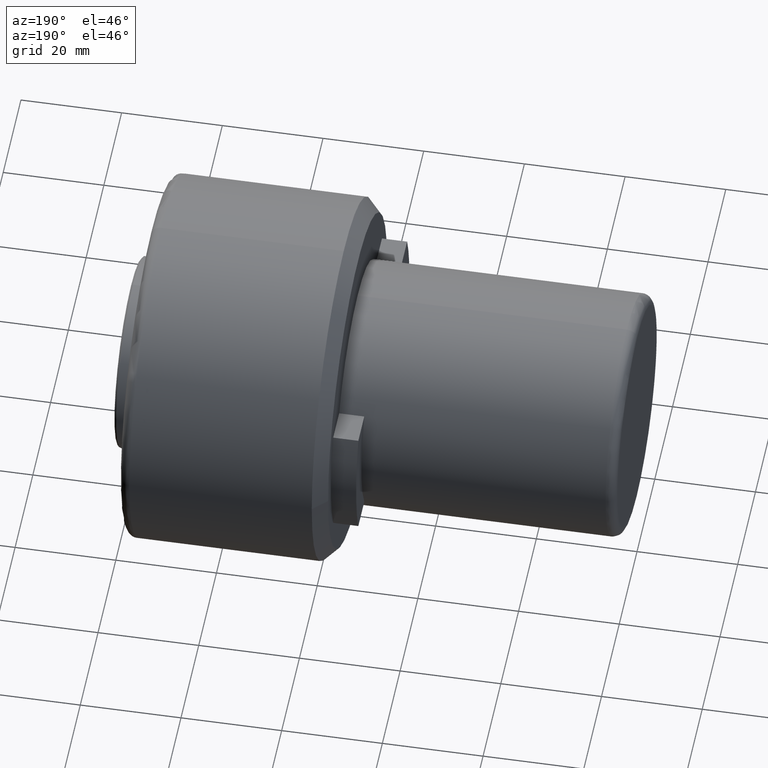
[diagram: clean part render]
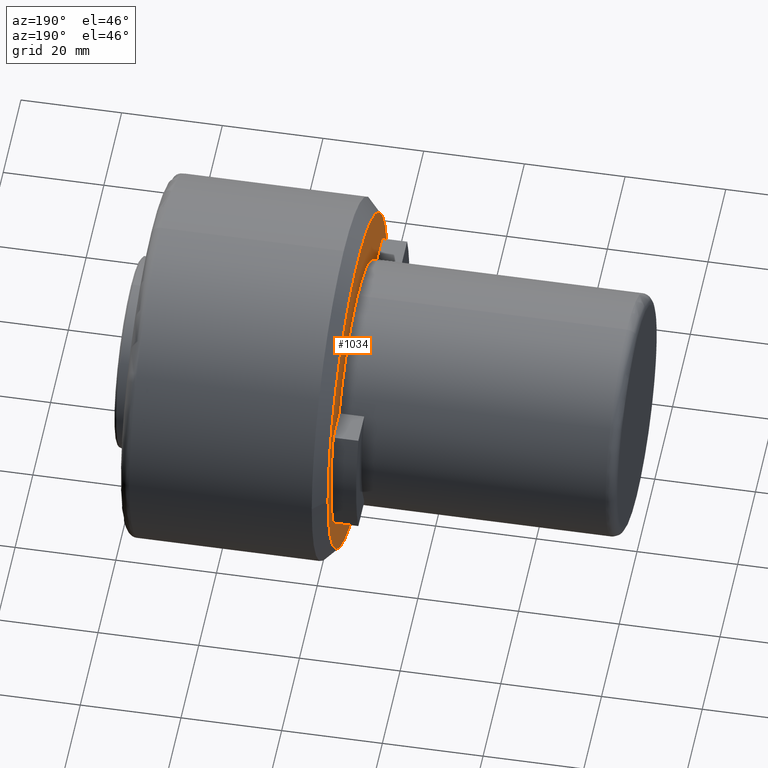
[diagram: same view with one face highlighted and labeled with its STEP entity id]
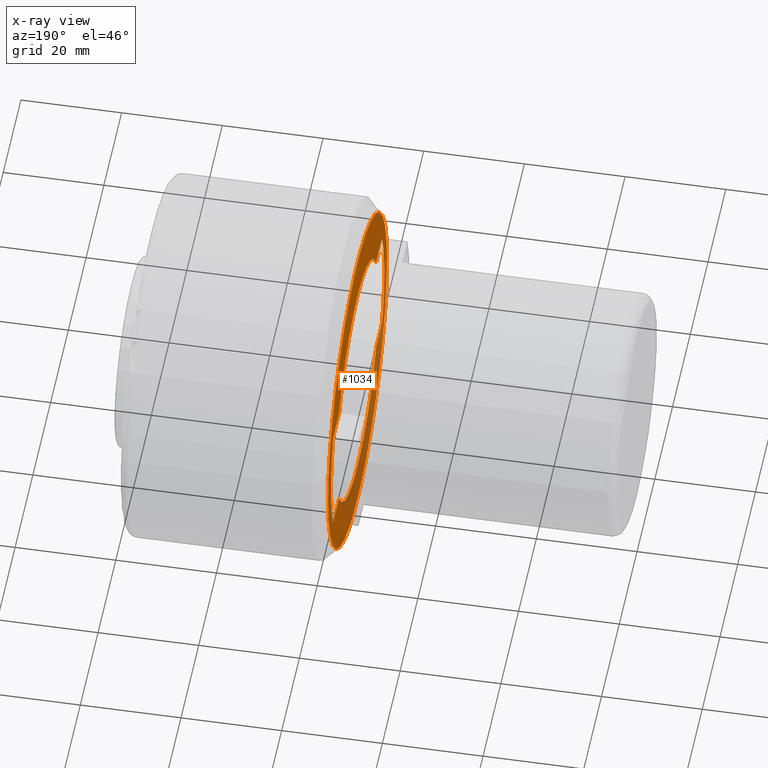
[diagram: x-ray of the same camera — body ghosted, the highlighted face saturated]
A machine part, auxiliary view. The second image highlights one B-rep face of the part: STEP entity #1034.
The next image is the same camera in x-ray: the body ghosted, the highlighted face saturated — about 37% of this face is hidden behind the body in this view.
In plain terms, the highlighted planar face has unit normal (1, 0, 0).
Its self-contained STEP definition (entity closure, byte-faithful):
#4 = AXIS2_PLACEMENT_3D ( 'NONE', #824, #956, #286 ) ;
#7 = EDGE_CURVE ( 'NONE', #547, #431, #415, .T. ) ;
#21 = VERTEX_POINT ( 'NONE', #1288 ) ;
#33 = CARTESIAN_POINT ( 'NONE',  ( 55.50000000000000000, -3.677383230559753800E-031, 0.0000000000000000000 ) ) ;
#54 = ORIENTED_EDGE ( 'NONE', *, *, #930, .F. ) ;
#62 = EDGE_CURVE ( 'NONE', #1160, #608, #928, .T. ) ;
#74 = CARTESIAN_POINT ( 'NONE',  ( 55.50000000000000700, -27.49545416980128100, 11.99999999999999800 ) ) ;
#93 = DIRECTION ( 'NONE',  ( -1.000000000000000000, -1.156482317317871700E-016, -0.0000000000000000000 ) ) ;
#118 = EDGE_CURVE ( 'NONE', #321, #1160, #661, .T. ) ;
#128 = CARTESIAN_POINT ( 'NONE',  ( 55.49999999999999300, -20.78460969007334200, 12.00000000130456000 ) ) ;
#131 = EDGE_CURVE ( 'NONE', #21, #522, #315, .T. ) ;
#154 = CARTESIAN_POINT ( 'NONE',  ( 55.50000000000000000, -33.64900000000000100, 11.99999999999999600 ) ) ;
#159 = VERTEX_POINT ( 'NONE', #839 ) ;
#164 = DIRECTION ( 'NONE',  ( 0.0000000000000000000, 1.000000000000000000, 0.0000000000000000000 ) ) ;
#234 = AXIS2_PLACEMENT_3D ( 'NONE', #736, #93, #844 ) ;
#243 = AXIS2_PLACEMENT_3D ( 'NONE', #664, #1294, #591 ) ;
#262 = CIRCLE ( 'NONE', #670, 33.24999999999999300 ) ;
#267 = DIRECTION ( 'NONE',  ( -1.000000000000000000, -1.156482317317871700E-016, -0.0000000000000000000 ) ) ;
#282 = VERTEX_POINT ( 'NONE', #615 ) ;
#286 = DIRECTION ( 'NONE',  ( 2.312964634635743000E-016, -1.000000000000000000, 0.0000000000000000000 ) ) ;
#290 = VERTEX_POINT ( 'NONE', #611 ) ;
#315 = CIRCLE ( 'NONE', #4, 30.00000000000000000 ) ;
#321 = VERTEX_POINT ( 'NONE', #630 ) ;
#326 = EDGE_CURVE ( 'NONE', #608, #21, #790, .T. ) ;
#334 = ORIENTED_EDGE ( 'NONE', *, *, #326, .F. ) ;
#335 = CARTESIAN_POINT ( 'NONE',  ( 55.50000000000000000, -33.64900000000000100, -33.64900000000000100 ) ) ;
#344 = VECTOR ( 'NONE', #1233, 1000.000000000000000 ) ;
#346 = LINE ( 'NONE', #598, #564 ) ;
#370 = AXIS2_PLACEMENT_3D ( 'NONE', #1218, #935, #1079 ) ;
#378 = CARTESIAN_POINT ( 'NONE',  ( 55.49999999999999300, -33.24999999999999300, 4.240339542047711600E-015 ) ) ;
#384 = EDGE_CURVE ( 'NONE', #431, #547, #262, .T. ) ;
#396 = EDGE_CURVE ( 'NONE', #1169, #873, #1287, .T. ) ;
#415 = CIRCLE ( 'NONE', #370, 33.24999999999999300 ) ;
#431 = VERTEX_POINT ( 'NONE', #937 ) ;
#464 = DIRECTION ( 'NONE',  ( -1.000000000000000000, 0.0000000000000000000, -1.445602896647339200E-016 ) ) ;
#468 = DIRECTION ( 'NONE',  ( -1.000000000000000000, 0.0000000000000000000, -1.445602896647339200E-016 ) ) ;
#475 = ORIENTED_EDGE ( 'NONE', *, *, #1274, .F. ) ;
#482 = AXIS2_PLACEMENT_3D ( 'NONE', #33, #267, #673 ) ;
#485 = ORIENTED_EDGE ( 'NONE', *, *, #396, .F. ) ;
#515 = EDGE_CURVE ( 'NONE', #282, #826, #346, .T. ) ;
#518 = VECTOR ( 'NONE', #1331, 1000.000000000000000 ) ;
#522 = VERTEX_POINT ( 'NONE', #74 ) ;
#545 = ORIENTED_EDGE ( 'NONE', *, *, #628, .F. ) ;
#547 = VERTEX_POINT ( 'NONE', #378 ) ;
#551 = ORIENTED_EDGE ( 'NONE', *, *, #515, .F. ) ;
#553 = PLANE ( 'NONE',  #923 ) ;
#564 = VECTOR ( 'NONE', #1246, 1000.000000000000000 ) ;
#566 = EDGE_LOOP ( 'NONE', ( #666, #741, #878, #622, #54, #551, #545, #485, #475, #755, #334 ) ) ;
#582 = CARTESIAN_POINT ( 'NONE',  ( 55.49999999999999300, 0.0000000000000000000, -7.523163844717393100E-031 ) ) ;
#583 = EDGE_CURVE ( 'NONE', #159, #290, #737, .T. ) ;
#591 = DIRECTION ( 'NONE',  ( 0.0000000000000000000, 0.0000000000000000000, 1.000000000000000000 ) ) ;
#598 = CARTESIAN_POINT ( 'NONE',  ( 55.50000000000000000, -33.64900000000000100, 11.99999999567059900 ) ) ;
#608 = VERTEX_POINT ( 'NONE', #781 ) ;
#611 = CARTESIAN_POINT ( 'NONE',  ( 55.50000000000000000, 20.78460969240347500, -11.99999999726865100 ) ) ;
#615 = CARTESIAN_POINT ( 'NONE',  ( 55.50000000000000700, 20.78460969332610700, 11.99999999567060100 ) ) ;
#622 = ORIENTED_EDGE ( 'NONE', *, *, #583, .F. ) ;
#627 = AXIS2_PLACEMENT_3D ( 'NONE', #582, #468, #1305 ) ;
#628 = EDGE_CURVE ( 'NONE', #873, #282, #768, .T. ) ;
#630 = CARTESIAN_POINT ( 'NONE',  ( 55.50000000000000700, 2.939152317953647900E-015, -24.00000000000000000 ) ) ;
#648 = FACE_BOUND ( 'NONE', #566, .T. ) ;
#652 = DIRECTION ( 'NONE',  ( -1.000000000000000000, 0.0000000000000000000, -1.445602896647339200E-016 ) ) ;
#656 = DIRECTION ( 'NONE',  ( 1.000000000000000000, 0.0000000000000000000, 0.0000000000000000000 ) ) ;
#661 = CIRCLE ( 'NONE', #243, 24.00000000000000000 ) ;
#664 = CARTESIAN_POINT ( 'NONE',  ( 55.50000000000000700, 0.0000000000000000000, 5.015442563508426400E-031 ) ) ;
#666 = ORIENTED_EDGE ( 'NONE', *, *, #62, .F. ) ;
#670 = AXIS2_PLACEMENT_3D ( 'NONE', #1296, #1037, #164 ) ;
#673 = DIRECTION ( 'NONE',  ( 2.312964634635743000E-016, -1.000000000000000000, 0.0000000000000000000 ) ) ;
#736 = CARTESIAN_POINT ( 'NONE',  ( 55.50000000000000000, 3.677383230559753400E-031, 0.0000000000000000000 ) ) ;
#737 = LINE ( 'NONE', #1145, #1267 ) ;
#741 = ORIENTED_EDGE ( 'NONE', *, *, #118, .F. ) ;
#755 = ORIENTED_EDGE ( 'NONE', *, *, #131, .F. ) ;
#768 = CIRCLE ( 'NONE', #627, 24.00000000000000000 ) ;
#781 = CARTESIAN_POINT ( 'NONE',  ( 55.50000000000000700, -27.49545417167629000, -11.99999999570380800 ) ) ;
#786 = LINE ( 'NONE', #154, #518 ) ;
#790 = CIRCLE ( 'NONE', #482, 30.00000000000000000 ) ;
#796 = CARTESIAN_POINT ( 'NONE',  ( 55.49999999999999300, 0.0000000000000000000, -7.523163844717393100E-031 ) ) ;
#805 = AXIS2_PLACEMENT_3D ( 'NONE', #796, #464, #1217 ) ;
#823 = EDGE_LOOP ( 'NONE', ( #903, #990 ) ) ;
#824 = CARTESIAN_POINT ( 'NONE',  ( 55.50000000000000000, -3.677383230559753800E-031, 0.0000000000000000000 ) ) ;
#826 = VERTEX_POINT ( 'NONE', #1368 ) ;
#839 = CARTESIAN_POINT ( 'NONE',  ( 55.49999999999999300, 27.49545417165220900, -11.99999999787949900 ) ) ;
#843 = DIRECTION ( 'NONE',  ( 0.0000000000000000000, -1.000000000000000000, -0.0000000000000000000 ) ) ;
#844 = DIRECTION ( 'NONE',  ( 2.312964634635743000E-016, -1.000000000000000000, 0.0000000000000000000 ) ) ;
#873 = VERTEX_POINT ( 'NONE', #1258 ) ;
#874 = CARTESIAN_POINT ( 'NONE',  ( 55.50000000000000700, -20.78460969578734200, -11.99999999140761600 ) ) ;
#878 = ORIENTED_EDGE ( 'NONE', *, *, #991, .F. ) ;
#881 = FACE_OUTER_BOUND ( 'NONE', #823, .T. ) ;
#903 = ORIENTED_EDGE ( 'NONE', *, *, #384, .F. ) ;
#923 = AXIS2_PLACEMENT_3D ( 'NONE', #335, #656, #1398 ) ;
#928 = LINE ( 'NONE', #963, #344 ) ;
#930 = EDGE_CURVE ( 'NONE', #826, #159, #1050, .T. ) ;
#935 = DIRECTION ( 'NONE',  ( 1.000000000000000000, 9.637352644315590300E-017, -0.0000000000000000000 ) ) ;
#937 = CARTESIAN_POINT ( 'NONE',  ( 55.49999999999999300, 33.24999999999999300, 0.0000000000000000000 ) ) ;
#940 = CIRCLE ( 'NONE', #1273, 24.00000000000000000 ) ;
#956 = DIRECTION ( 'NONE',  ( -1.000000000000000000, -1.156482317317871700E-016, -0.0000000000000000000 ) ) ;
#963 = CARTESIAN_POINT ( 'NONE',  ( 55.50000000000000000, -33.64900000000000100, -11.99999999140761600 ) ) ;
#990 = ORIENTED_EDGE ( 'NONE', *, *, #7, .F. ) ;
#991 = EDGE_CURVE ( 'NONE', #290, #321, #940, .T. ) ;
#1034 = ADVANCED_FACE ( 'NONE', ( #881, #648 ), #553, .F. ) ;
#1037 = DIRECTION ( 'NONE',  ( 1.000000000000000000, 9.637352644315590300E-017, -0.0000000000000000000 ) ) ;
#1050 = CIRCLE ( 'NONE', #234, 30.00000000000000000 ) ;
#1079 = DIRECTION ( 'NONE',  ( 0.0000000000000000000, 1.000000000000000000, 0.0000000000000000000 ) ) ;
#1145 = CARTESIAN_POINT ( 'NONE',  ( 55.50000000000000000, -33.64900000000000100, -11.99999999575899600 ) ) ;
#1160 = VERTEX_POINT ( 'NONE', #874 ) ;
#1169 = VERTEX_POINT ( 'NONE', #128 ) ;
#1217 = DIRECTION ( 'NONE',  ( 0.0000000000000000000, 0.0000000000000000000, 1.000000000000000000 ) ) ;
#1218 = CARTESIAN_POINT ( 'NONE',  ( 55.49999999999999300, -2.650271977186816100E-016, 0.0000000000000000000 ) ) ;
#1233 = DIRECTION ( 'NONE',  ( 0.0000000000000000000, -1.000000000000000000, -0.0000000000000000000 ) ) ;
#1246 = DIRECTION ( 'NONE',  ( -0.0000000000000000000, 1.000000000000000000, 0.0000000000000000000 ) ) ;
#1258 = CARTESIAN_POINT ( 'NONE',  ( 55.49999999999999300, 0.0000000000000000000, 24.00000000000000400 ) ) ;
#1267 = VECTOR ( 'NONE', #843, 1000.000000000000000 ) ;
#1273 = AXIS2_PLACEMENT_3D ( 'NONE', #1275, #652, #1388 ) ;
#1274 = EDGE_CURVE ( 'NONE', #522, #1169, #786, .T. ) ;
#1275 = CARTESIAN_POINT ( 'NONE',  ( 55.50000000000000700, 0.0000000000000000000, 5.015442563508426400E-031 ) ) ;
#1287 = CIRCLE ( 'NONE', #805, 24.00000000000000000 ) ;
#1288 = CARTESIAN_POINT ( 'NONE',  ( 55.50000000000000700, -30.00000000000000000, 0.0000000000000000000 ) ) ;
#1294 = DIRECTION ( 'NONE',  ( -1.000000000000000000, 0.0000000000000000000, -1.445602896647339200E-016 ) ) ;
#1296 = CARTESIAN_POINT ( 'NONE',  ( 55.49999999999999300, -2.650271977186816100E-016, 0.0000000000000000000 ) ) ;
#1305 = DIRECTION ( 'NONE',  ( 0.0000000000000000000, 0.0000000000000000000, 1.000000000000000000 ) ) ;
#1331 = DIRECTION ( 'NONE',  ( -0.0000000000000000000, 1.000000000000000000, 0.0000000000000000000 ) ) ;
#1368 = CARTESIAN_POINT ( 'NONE',  ( 55.49999999999999300, 27.49545417074602900, 11.99999999783530000 ) ) ;
#1388 = DIRECTION ( 'NONE',  ( 0.0000000000000000000, 0.0000000000000000000, 1.000000000000000000 ) ) ;
#1398 = DIRECTION ( 'NONE',  ( 0.0000000000000000000, 0.0000000000000000000, -1.000000000000000000 ) ) ;